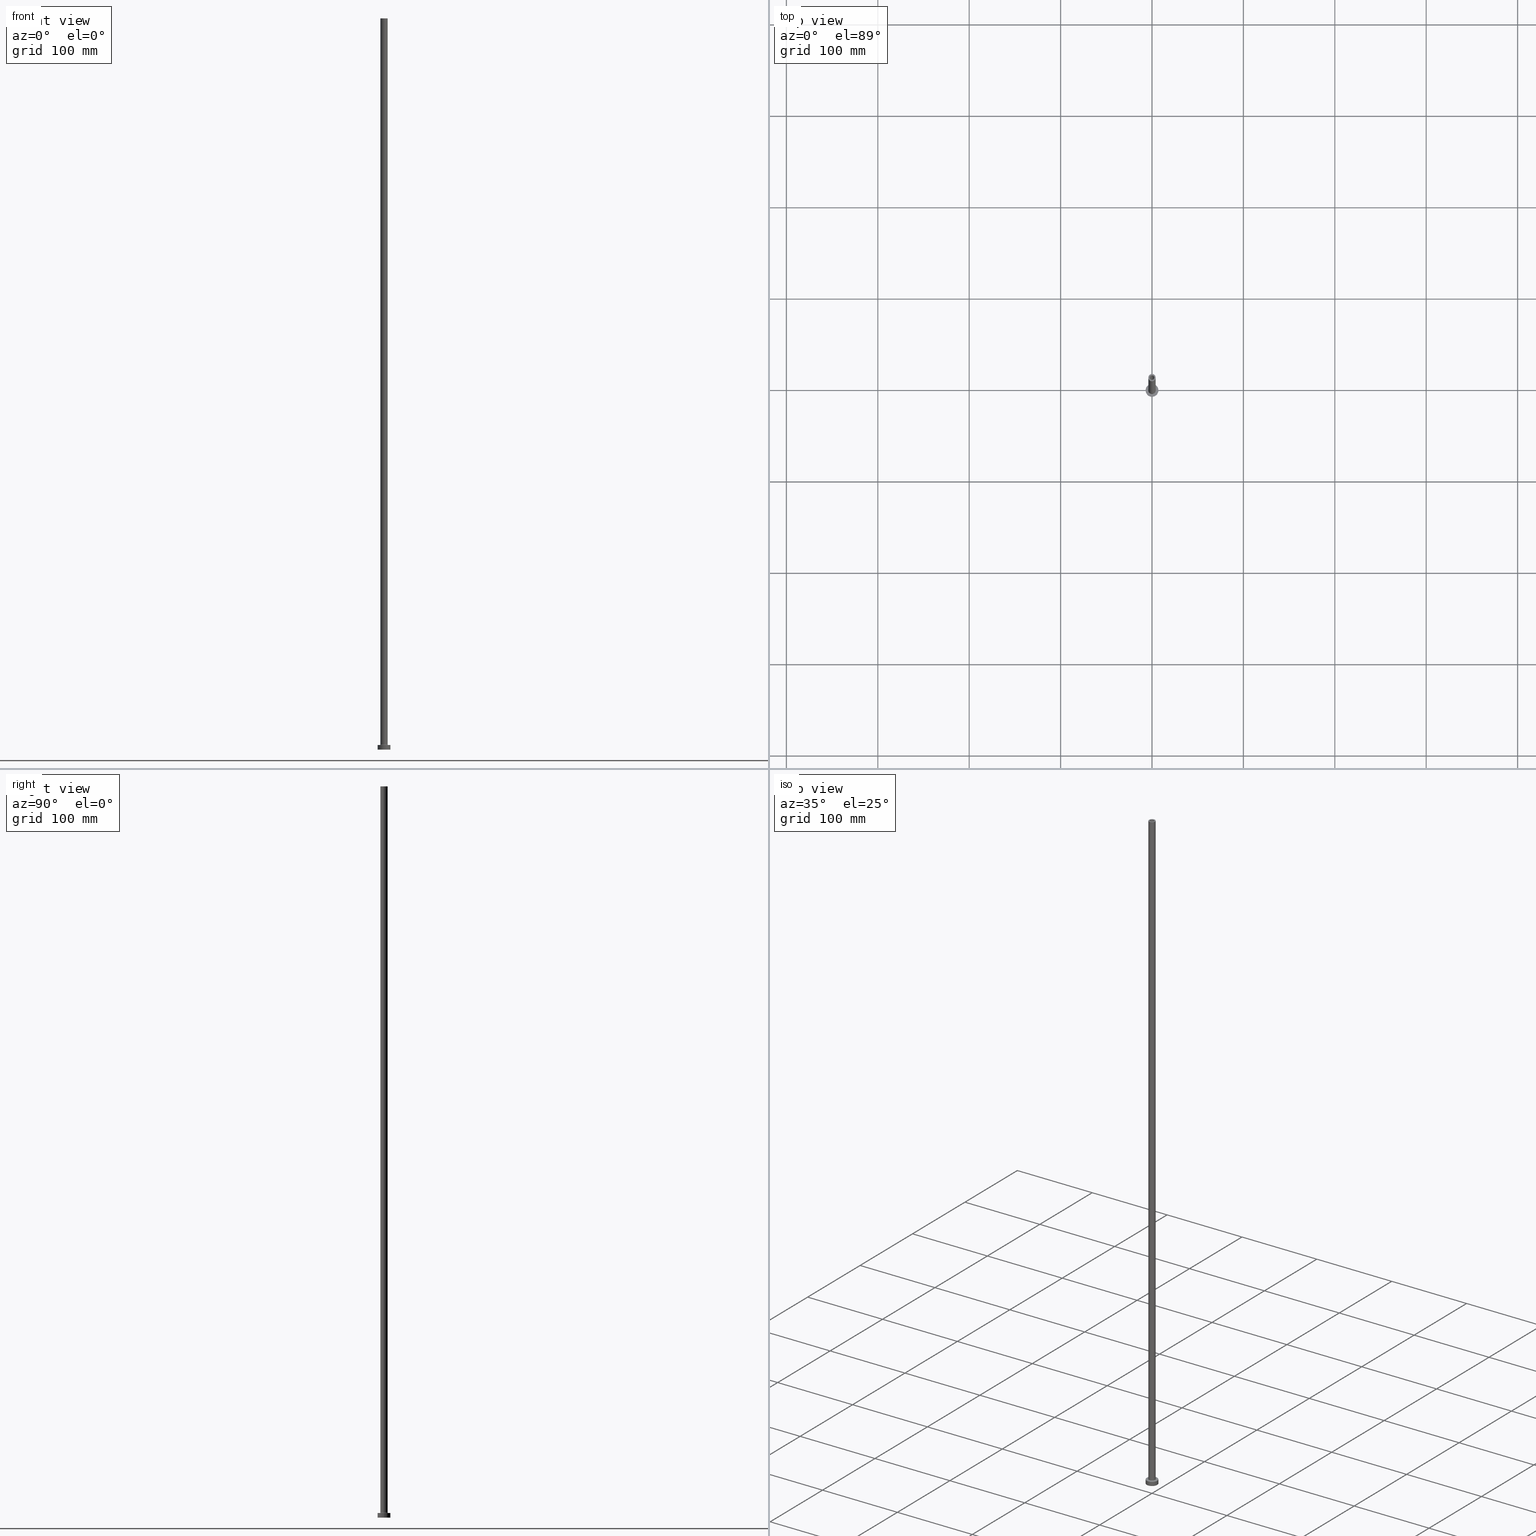
[diagram: canonical four-view strip — front | top / right | iso, engineering-drawing reading convention]
A machine part, canonical four-view strip (front | top / right | iso — engineering-drawing reading convention). The complete STEP part file that produces these views, byte-faithful:
ISO-10303-21;
HEADER;
FILE_DESCRIPTION (( 'STEP AP203' ),
    '1' );
FILE_NAME ('edc5.STEP',
    '2023-02-13T17:07:32',
    ( '' ),
    ( '' ),
    'SwSTEP 2.0',
    'SolidWorks 2019',
    '' );
FILE_SCHEMA (( 'CONFIG_CONTROL_DESIGN' ));
ENDSEC;

DATA;
#1 = EDGE_CURVE ( 'NONE', #314, #282, #418, .T. ) ;
#2 = ORIENTED_EDGE ( 'NONE', *, *, #391, .F. ) ;
#3 = DIRECTION ( 'NONE',  ( 0.000000000000000000, 0.000000000000000000, -1.000000000000000000 ) ) ;
#4 = ORIENTED_EDGE ( 'NONE', *, *, #53, .T. ) ;
#5 = CARTESIAN_POINT ( 'NONE',  ( 0.000000000000000000, 0.000000000000000000, 5.000000000000000000 ) ) ;
#6 = ORIENTED_EDGE ( 'NONE', *, *, #226, .F. ) ;
#7 = PLANE ( 'NONE',  #70 ) ;
#8 = CARTESIAN_POINT ( 'NONE',  ( 2.649999999999999911, 3.245314017740485962E-16, 762.4953318805775098 ) ) ;
#9 = ORIENTED_EDGE ( 'NONE', *, *, #249, .F. ) ;
#10 = CC_DESIGN_PERSON_AND_ORGANIZATION_ASSIGNMENT ( #262, #239, ( #187 ) ) ;
#11 = APPROVAL_ROLE ( '' ) ;
#12 = EDGE_LOOP ( 'NONE', ( #233, #182, #335, #103 ) ) ;
#13 = LINE ( 'NONE', #365, #410 ) ;
#14 = CIRCLE ( 'NONE', #258, 0.5000000000000004441 ) ;
#15 = LINE ( 'NONE', #222, #440 ) ;
#16 = VERTEX_POINT ( 'NONE', #231 ) ;
#17 = CIRCLE ( 'NONE', #133, 2.500000000000000000 ) ;
#18 = CIRCLE ( 'NONE', #460, 4.000000000000000000 ) ;
#19 = VECTOR ( 'NONE', #437, 1000.000000000000000 ) ;
#20 = EDGE_CURVE ( 'NONE', #243, #386, #14, .T. ) ;
#21 = DIRECTION ( 'NONE',  ( -0.000000000000000000, -0.000000000000000000, -1.000000000000000000 ) ) ;
#22 = FACE_OUTER_BOUND ( 'NONE', #164, .T. ) ;
#23 = ORIENTED_EDGE ( 'NONE', *, *, #208, .F. ) ;
#24 = DIRECTION ( 'NONE',  ( 1.000000000000000000, 0.000000000000000000, -0.000000000000000000 ) ) ;
#25 = PERSON ( 'NEUR�EN�', 'NEUR�EN�', 'NEUR�EN�', ('NEUR�EN�'), ('NEUR�EN�'), ('NEUR�EN�') ) ;
#26 = EDGE_LOOP ( 'NONE', ( #240, #390, #438, #290 ) ) ;
#27 = AXIS2_PLACEMENT_3D ( 'NONE', #197, #43, #347 ) ;
#28 = CARTESIAN_POINT ( 'NONE',  ( 0.000000000000000000, 0.000000000000000000, 755.0000000000000000 ) ) ;
#29 = DIRECTION ( 'NONE',  ( -0.000000000000000000, -0.000000000000000000, -1.000000000000000000 ) ) ;
#30 = CIRCLE ( 'NONE', #275, 2.649999999999999911 ) ;
#31 = CARTESIAN_POINT ( 'NONE',  ( 0.000000000000000000, 0.000000000000000000, 800.0000000000000000 ) ) ;
#32 = DIRECTION ( 'NONE',  ( 0.000000000000000000, 0.000000000000000000, 1.000000000000000000 ) ) ;
#33 = VERTEX_POINT ( 'NONE', #127 ) ;
#34 = CIRCLE ( 'NONE', #255, 2.500000000000000000 ) ;
#35 = CARTESIAN_POINT ( 'NONE',  ( 0.000000000000000000, 0.000000000000000000, 0.000000000000000000 ) ) ;
#36 = APPROVAL_DATE_TIME ( #281, #184 ) ;
#37 = DIRECTION ( 'NONE',  ( 1.000000000000000000, 0.000000000000000000, 0.000000000000000000 ) ) ;
#38 = DIRECTION ( 'NONE',  ( 1.000000000000000000, 0.000000000000000000, 0.000000000000000000 ) ) ;
#39 = EDGE_CURVE ( 'NONE', #386, #115, #68, .T. ) ;
#40 = CYLINDRICAL_SURFACE ( 'NONE', #71, 2.500000000000000000 ) ;
#41 = EDGE_LOOP ( 'NONE', ( #136, #132, #248, #49 ) ) ;
#42 = EDGE_LOOP ( 'NONE', ( #439, #169, #73, #446 ) ) ;
#43 = DIRECTION ( 'NONE',  ( 0.000000000000000000, 0.000000000000000000, -1.000000000000000000 ) ) ;
#44 = TOROIDAL_SURFACE ( 'NONE', #351, 4.500000000000000888, 0.5000000000000000000 ) ;
#45 = DIRECTION ( 'NONE',  ( 1.000000000000000000, 0.000000000000000000, -0.000000000000000000 ) ) ;
#46 =( GEOMETRIC_REPRESENTATION_CONTEXT ( 3 ) GLOBAL_UNCERTAINTY_ASSIGNED_CONTEXT ( ( #198 ) ) GLOBAL_UNIT_ASSIGNED_CONTEXT ( ( #159, #400, #321 ) ) REPRESENTATION_CONTEXT ( 'NONE', 'WORKASPACE' ) );
#47 = ORIENTED_EDGE ( 'NONE', *, *, #108, .F. ) ;
#48 = MECHANICAL_CONTEXT ( 'NONE', #362, 'mechanical' ) ;
#49 = ORIENTED_EDGE ( 'NONE', *, *, #150, .F. ) ;
#50 = DIRECTION ( 'NONE',  ( 1.000000000000000000, 0.000000000000000000, 0.000000000000000000 ) ) ;
#51 = VERTEX_POINT ( 'NONE', #304 ) ;
#52 = DIRECTION ( 'NONE',  ( 0.000000000000000000, 0.000000000000000000, 1.000000000000000000 ) ) ;
#53 = EDGE_CURVE ( 'NONE', #33, #110, #366, .T. ) ;
#54 = APPROVAL_ROLE ( '' ) ;
#55 = EDGE_CURVE ( 'NONE', #354, #85, #30, .T. ) ;
#56 = CARTESIAN_POINT ( 'NONE',  ( 0.000000000000000000, 0.000000000000000000, 800.0000000000000000 ) ) ;
#57 = LINE ( 'NONE', #190, #329 ) ;
#58 = COORDINATED_UNIVERSAL_TIME_OFFSET ( 1, 0, .AHEAD. ) ;
#59 = EDGE_LOOP ( 'NONE', ( #230, #82 ) ) ;
#60 = AXIS2_PLACEMENT_3D ( 'NONE', #123, #257, #453 ) ;
#61 = DIRECTION ( 'NONE',  ( -1.000000000000000000, 0.000000000000000000, 0.000000000000000000 ) ) ;
#62 = APPROVAL_PERSON_ORGANIZATION ( #256, #322, #54 ) ;
#63 = DIRECTION ( 'NONE',  ( 0.000000000000000000, 0.000000000000000000, 1.000000000000000000 ) ) ;
#64 = CARTESIAN_POINT ( 'NONE',  ( 0.000000000000000000, 0.000000000000000000, 755.0000000000000000 ) ) ;
#65 = DIRECTION ( 'NONE',  ( 0.000000000000000000, 0.000000000000000000, 1.000000000000000000 ) ) ;
#66 = ADVANCED_FACE ( 'NONE', ( #422 ), #378, .T. ) ;
#67 = CARTESIAN_POINT ( 'NONE',  ( -7.000000000000000000, 0.000000000000000000, 5.000000000000000000 ) ) ;
#68 = CIRCLE ( 'NONE', #426, 4.500000000000000888 ) ;
#69 = EDGE_LOOP ( 'NONE', ( #6, #47 ) ) ;
#70 = AXIS2_PLACEMENT_3D ( 'NONE', #173, #140, #111 ) ;
#71 = AXIS2_PLACEMENT_3D ( 'NONE', #425, #461, #361 ) ;
#72 = LOCAL_TIME ( 18, 7, 32.00000000000000000, #217 ) ;
#73 = ORIENTED_EDGE ( 'NONE', *, *, #155, .T. ) ;
#74 = PRODUCT_DEFINITION_SHAPE ( 'NONE', 'NONE',  #194 ) ;
#75 = LINE ( 'NONE', #381, #19 ) ;
#76 = SHAPE_DEFINITION_REPRESENTATION ( #74, #166 ) ;
#77 = ORIENTED_EDGE ( 'NONE', *, *, #39, .F. ) ;
#78 = DIRECTION ( 'NONE',  ( 0.000000000000000000, 0.000000000000000000, 1.000000000000000000 ) ) ;
#79 = ORIENTED_EDGE ( 'NONE', *, *, #53, .F. ) ;
#80 = CARTESIAN_POINT ( 'NONE',  ( -2.500000000000000000, 0.000000000000000000, 755.0000000000000000 ) ) ;
#81 = VECTOR ( 'NONE', #433, 1000.000000000000000 ) ;
#82 = ORIENTED_EDGE ( 'NONE', *, *, #268, .F. ) ;
#83 = ADVANCED_FACE ( 'NONE', ( #102 ), #192, .F. ) ;
#84 = DIRECTION ( 'NONE',  ( 0.000000000000000000, 0.000000000000000000, 1.000000000000000000 ) ) ;
#85 = VERTEX_POINT ( 'NONE', #193 ) ;
#86 = AXIS2_PLACEMENT_3D ( 'NONE', #415, #295, #61 ) ;
#87 = CIRCLE ( 'NONE', #253, 2.649999999999999911 ) ;
#88 = FACE_OUTER_BOUND ( 'NONE', #130, .T. ) ;
#89 = APPROVAL_PERSON_ORGANIZATION ( #337, #161, #303 ) ;
#90 = DATE_AND_TIME ( #407, #389 ) ;
#91 = FACE_BOUND ( 'NONE', #228, .T. ) ;
#92 = CC_DESIGN_PERSON_AND_ORGANIZATION_ASSIGNMENT ( #157, #305, ( #194 ) ) ;
#93 = FACE_OUTER_BOUND ( 'NONE', #207, .T. ) ;
#94 = AXIS2_PLACEMENT_3D ( 'NONE', #212, #63, #199 ) ;
#95 = CALENDAR_DATE ( 2023, 13, 2 ) ;
#96 = APPROVAL_DATE_TIME ( #265, #161 ) ;
#97 = DIRECTION ( 'NONE',  ( 1.000000000000000000, 0.000000000000000000, 0.000000000000000000 ) ) ;
#98 = CARTESIAN_POINT ( 'NONE',  ( 0.000000000000000000, 0.000000000000000000, 5.000000000000000000 ) ) ;
#99 = CC_DESIGN_DATE_AND_TIME_ASSIGNMENT ( #294, #412, ( #187 ) ) ;
#100 = VECTOR ( 'NONE', #310, 1000.000000000000000 ) ;
#101 = ADVANCED_FACE ( 'NONE', ( #156 ), #236, .F. ) ;
#102 = FACE_OUTER_BOUND ( 'NONE', #394, .T. ) ;
#103 = ORIENTED_EDGE ( 'NONE', *, *, #55, .T. ) ;
#104 = CARTESIAN_POINT ( 'NONE',  ( 4.000000000000000000, 4.898587196589412829E-16, 5.499999999999949374 ) ) ;
#105 = CIRCLE ( 'NONE', #241, 4.500000000000000888 ) ;
#106 = APPROVAL_PERSON_ORGANIZATION ( #107, #184, #11 ) ;
#107 = PERSON_AND_ORGANIZATION ( #25, #261 ) ;
#108 = EDGE_CURVE ( 'NONE', #16, #431, #332, .T. ) ;
#109 = DIRECTION ( 'NONE',  ( 1.000000000000000000, 0.000000000000000000, 0.000000000000000000 ) ) ;
#110 = VERTEX_POINT ( 'NONE', #67 ) ;
#111 = DIRECTION ( 'NONE',  ( 1.000000000000000000, 0.000000000000000000, -0.000000000000000000 ) ) ;
#112 = CC_DESIGN_DATE_AND_TIME_ASSIGNMENT ( #291, #447, ( #194 ) ) ;
#113 = CARTESIAN_POINT ( 'NONE',  ( 2.649999999999999911, 3.245314017740485962E-16, 755.0000000000000000 ) ) ;
#114 = DIRECTION ( 'NONE',  ( -1.000000000000000000, 0.000000000000000000, 0.000000000000000000 ) ) ;
#115 = VERTEX_POINT ( 'NONE', #409 ) ;
#116 = ADVANCED_FACE ( 'NONE', ( #93 ), #44, .F. ) ;
#117 = AXIS2_PLACEMENT_3D ( 'NONE', #379, #65, #195 ) ;
#118 = ORIENTED_EDGE ( 'NONE', *, *, #377, .T. ) ;
#119 = ORIENTED_EDGE ( 'NONE', *, *, #20, .F. ) ;
#120 = CARTESIAN_POINT ( 'NONE',  ( 0.000000000000000000, 0.000000000000000000, 0.000000000000000000 ) ) ;
#121 = DIRECTION ( 'NONE',  ( -0.000000000000000000, -0.000000000000000000, -1.000000000000000000 ) ) ;
#122 = AXIS2_PLACEMENT_3D ( 'NONE', #181, #21, #272 ) ;
#123 = CARTESIAN_POINT ( 'NONE',  ( 0.000000000000000000, 0.000000000000000000, 5.499999999999949374 ) ) ;
#124 = DIRECTION ( 'NONE',  ( 0.000000000000000000, 0.000000000000000000, 1.000000000000000000 ) ) ;
#125 = AXIS2_PLACEMENT_3D ( 'NONE', #364, #143, #146 ) ;
#126 = EDGE_CURVE ( 'NONE', #110, #431, #57, .T. ) ;
#127 = CARTESIAN_POINT ( 'NONE',  ( 7.000000000000000000, 8.572527594031473190E-16, 5.000000000000000000 ) ) ;
#128 = CARTESIAN_POINT ( 'NONE',  ( 0.000000000000000000, 0.000000000000000000, 0.000000000000000000 ) ) ;
#129 = PERSON_AND_ORGANIZATION ( #25, #261 ) ;
#130 = EDGE_LOOP ( 'NONE', ( #23, #397, #355, #456 ) ) ;
#131 = DIRECTION ( 'NONE',  ( 1.000000000000000000, 0.000000000000000000, 0.000000000000000000 ) ) ;
#132 = ORIENTED_EDGE ( 'NONE', *, *, #444, .T. ) ;
#133 = AXIS2_PLACEMENT_3D ( 'NONE', #172, #326, #323 ) ;
#134 = DIRECTION ( 'NONE',  ( -0.000000000000000000, -0.000000000000000000, -1.000000000000000000 ) ) ;
#135 = EDGE_CURVE ( 'NONE', #435, #227, #299, .T. ) ;
#136 = ORIENTED_EDGE ( 'NONE', *, *, #340, .T. ) ;
#137 = LOCAL_TIME ( 18, 7, 32.00000000000000000, #267 ) ;
#138 = EDGE_CURVE ( 'NONE', #441, #243, #15, .T. ) ;
#139 = VERTEX_POINT ( 'NONE', #113 ) ;
#140 = DIRECTION ( 'NONE',  ( 0.000000000000000000, 0.000000000000000000, 1.000000000000000000 ) ) ;
#141 = EDGE_LOOP ( 'NONE', ( #214, #315, #384, #288 ) ) ;
#142 = ORIENTED_EDGE ( 'NONE', *, *, #336, .T. ) ;
#143 = DIRECTION ( 'NONE',  ( -0.000000000000000000, -0.000000000000000000, -1.000000000000000000 ) ) ;
#144 = DIRECTION ( 'NONE',  ( 1.000000000000000000, 0.000000000000000000, -0.000000000000000000 ) ) ;
#145 = EDGE_LOOP ( 'NONE', ( #401, #363 ) ) ;
#146 = DIRECTION ( 'NONE',  ( -1.000000000000000000, 0.000000000000000000, 0.000000000000000000 ) ) ;
#147 = COORDINATED_UNIVERSAL_TIME_OFFSET ( 1, 0, .AHEAD. ) ;
#148 = DIRECTION ( 'NONE',  ( 0.000000000000000000, 0.000000000000000000, 1.000000000000000000 ) ) ;
#149 = AXIS2_PLACEMENT_3D ( 'NONE', #202, #244, #350 ) ;
#150 = EDGE_CURVE ( 'NONE', #176, #354, #408, .T. ) ;
#151 = SECURITY_CLASSIFICATION_LEVEL ( 'unclassified' ) ;
#152 = DIRECTION ( 'NONE',  ( 1.000000000000000000, 0.000000000000000000, 0.000000000000000000 ) ) ;
#153 = CARTESIAN_POINT ( 'NONE',  ( 0.000000000000000000, 0.000000000000000000, 755.0000000000000000 ) ) ;
#154 = PRODUCT_DEFINITION_FORMATION_WITH_SPECIFIED_SOURCE ( 'LIBOVOLN�', '', #206, .NOT_KNOWN. ) ;
#155 = EDGE_CURVE ( 'NONE', #435, #282, #432, .T. ) ;
#156 = FACE_OUTER_BOUND ( 'NONE', #12, .T. ) ;
#157 = PERSON_AND_ORGANIZATION ( #25, #261 ) ;
#158 = CC_DESIGN_PERSON_AND_ORGANIZATION_ASSIGNMENT ( #129, #427, ( #206 ) ) ;
#159 =( LENGTH_UNIT ( ) NAMED_UNIT ( * ) SI_UNIT ( .MILLI., .METRE. ) );
#160 = FACE_OUTER_BOUND ( 'NONE', #42, .T. ) ;
#161 = APPROVAL ( #343, 'NEUR�EN�' ) ;
#162 = CIRCLE ( 'NONE', #149, 7.000000000000000000 ) ;
#163 = ORIENTED_EDGE ( 'NONE', *, *, #20, .T. ) ;
#164 = EDGE_LOOP ( 'NONE', ( #142, #216 ) ) ;
#165 = CARTESIAN_POINT ( 'NONE',  ( -4.500000000000000888, 5.510910596163088569E-16, 4.999999999999975131 ) ) ;
#166 = ADVANCED_BREP_SHAPE_REPRESENTATION ( 'edc5', ( #398, #369 ), #46 ) ;
#167 = CYLINDRICAL_SURFACE ( 'NONE', #27, 2.500000000000000000 ) ;
#168 = AXIS2_PLACEMENT_3D ( 'NONE', #128, #124, #97 ) ;
#169 = ORIENTED_EDGE ( 'NONE', *, *, #268, .T. ) ;
#170 = AXIS2_PLACEMENT_3D ( 'NONE', #120, #52, #175 ) ;
#171 = APPLICATION_PROTOCOL_DEFINITION ( 'international standard', 'config_control_design', 1994, #277 ) ;
#172 = CARTESIAN_POINT ( 'NONE',  ( 0.000000000000000000, 0.000000000000000000, 800.0000000000000000 ) ) ;
#173 = CARTESIAN_POINT ( 'NONE',  ( 0.000000000000000000, 0.000000000000000000, 5.000000000000000000 ) ) ;
#174 = ORIENTED_EDGE ( 'NONE', *, *, #454, .F. ) ;
#175 = DIRECTION ( 'NONE',  ( 1.000000000000000000, 0.000000000000000000, 0.000000000000000000 ) ) ;
#176 = VERTEX_POINT ( 'NONE', #395 ) ;
#177 = PRODUCT_RELATED_PRODUCT_CATEGORY ( 'detail', '', ( #206 ) ) ;
#178 = AXIS2_PLACEMENT_3D ( 'NONE', #414, #301, #353 ) ;
#179 = EDGE_LOOP ( 'NONE', ( #200, #4 ) ) ;
#180 = CARTESIAN_POINT ( 'NONE',  ( 2.500000000000000000, 3.061616997868383141E-16, 800.0000000000000000 ) ) ;
#181 = CARTESIAN_POINT ( 'NONE',  ( 0.000000000000000000, 0.000000000000000000, 5.000000000000000000 ) ) ;
#182 = ORIENTED_EDGE ( 'NONE', *, *, #302, .T. ) ;
#183 = FACE_OUTER_BOUND ( 'NONE', #179, .T. ) ;
#184 = APPROVAL ( #325, 'NEUR�EN�' ) ;
#185 = ORIENTED_EDGE ( 'NONE', *, *, #55, .F. ) ;
#186 = CIRCLE ( 'NONE', #117, 2.649999999999999911 ) ;
#187 = SECURITY_CLASSIFICATION ( '', '', #151 ) ;
#188 = CARTESIAN_POINT ( 'NONE',  ( 0.000000000000000000, 0.000000000000000000, 5.499999999999949374 ) ) ;
#189 = CALENDAR_DATE ( 2023, 13, 2 ) ;
#190 = CARTESIAN_POINT ( 'NONE',  ( -7.000000000000000000, 0.000000000000000000, 5.000000000000000000 ) ) ;
#191 = CARTESIAN_POINT ( 'NONE',  ( 0.000000000000000000, 0.000000000000000000, 5.499999999999949374 ) ) ;
#192 = TOROIDAL_SURFACE ( 'NONE', #60, 4.500000000000000888, 0.5000000000000000000 ) ;
#193 = CARTESIAN_POINT ( 'NONE',  ( 2.649999999999999911, 3.245314017740485962E-16, 0.000000000000000000 ) ) ;
#194 = PRODUCT_DEFINITION ( 'NEZN�M�', '', #154, #309 ) ;
#195 = DIRECTION ( 'NONE',  ( 1.000000000000000000, 0.000000000000000000, 0.000000000000000000 ) ) ;
#196 = ORIENTED_EDGE ( 'NONE', *, *, #238, .F. ) ;
#197 = CARTESIAN_POINT ( 'NONE',  ( 0.000000000000000000, 0.000000000000000000, 800.0000000000000000 ) ) ;
#198 = UNCERTAINTY_MEASURE_WITH_UNIT (LENGTH_MEASURE( 1.000000000000000082E-05 ), #159, 'distance_accuracy_value', 'NONE');
#199 = DIRECTION ( 'NONE',  ( 1.000000000000000000, 0.000000000000000000, 0.000000000000000000 ) ) ;
#200 = ORIENTED_EDGE ( 'NONE', *, *, #391, .T. ) ;
#201 = CARTESIAN_POINT ( 'NONE',  ( -2.500000000000000000, 0.000000000000000000, 800.0000000000000000 ) ) ;
#202 = CARTESIAN_POINT ( 'NONE',  ( 0.000000000000000000, 0.000000000000000000, 5.000000000000000000 ) ) ;
#203 = ORIENTED_EDGE ( 'NONE', *, *, #108, .T. ) ;
#204 = EDGE_CURVE ( 'NONE', #115, #386, #105, .T. ) ;
#205 = AXIS2_PLACEMENT_3D ( 'NONE', #234, #423, #144 ) ;
#206 = PRODUCT ( 'edc5', 'edc5', '', ( #48 ) ) ;
#207 = EDGE_LOOP ( 'NONE', ( #196, #163, #218, #300 ) ) ;
#208 = EDGE_CURVE ( 'NONE', #51, #358, #349, .T. ) ;
#209 = DIRECTION ( 'NONE',  ( 0.000000000000000000, 0.000000000000000000, -1.000000000000000000 ) ) ;
#210 = CARTESIAN_POINT ( 'NONE',  ( 0.000000000000000000, 0.000000000000000000, 800.0000000000000000 ) ) ;
#211 = CARTESIAN_POINT ( 'NONE',  ( 0.000000000000000000, 0.000000000000000000, 755.0000000000000000 ) ) ;
#212 = CARTESIAN_POINT ( 'NONE',  ( 0.000000000000000000, 0.000000000000000000, 800.0000000000000000 ) ) ;
#213 = APPLICATION_PROTOCOL_DEFINITION ( 'international standard', 'config_control_design', 1994, #362 ) ;
#214 = ORIENTED_EDGE ( 'NONE', *, *, #135, .T. ) ;
#215 = CIRCLE ( 'NONE', #94, 4.000000000000000000 ) ;
#216 = ORIENTED_EDGE ( 'NONE', *, *, #405, .T. ) ;
#217 = COORDINATED_UNIVERSAL_TIME_OFFSET ( 1, 0, .AHEAD. ) ;
#218 = ORIENTED_EDGE ( 'NONE', *, *, #204, .F. ) ;
#219 = ORIENTED_EDGE ( 'NONE', *, *, #126, .T. ) ;
#220 = AXIS2_PLACEMENT_3D ( 'NONE', #263, #383, #38 ) ;
#221 = EDGE_CURVE ( 'NONE', #227, #314, #13, .T. ) ;
#222 = CARTESIAN_POINT ( 'NONE',  ( -4.000000000000000000, 0.000000000000000000, 800.0000000000000000 ) ) ;
#223 = CIRCLE ( 'NONE', #170, 7.000000000000000000 ) ;
#224 = APPROVAL_STATUS ( 'not_yet_approved' ) ;
#225 = CYLINDRICAL_SURFACE ( 'NONE', #125, 4.000000000000000000 ) ;
#226 = EDGE_CURVE ( 'NONE', #431, #16, #223, .T. ) ;
#227 = VERTEX_POINT ( 'NONE', #180 ) ;
#228 = EDGE_LOOP ( 'NONE', ( #185, #251 ) ) ;
#229 = DIRECTION ( 'NONE',  ( 0.000000000000000000, 0.000000000000000000, 1.000000000000000000 ) ) ;
#230 = ORIENTED_EDGE ( 'NONE', *, *, #135, .F. ) ;
#231 = CARTESIAN_POINT ( 'NONE',  ( 7.000000000000000000, 8.572527594031473190E-16, 0.000000000000000000 ) ) ;
#232 = ADVANCED_FACE ( 'NONE', ( #88 ), #225, .T. ) ;
#233 = ORIENTED_EDGE ( 'NONE', *, *, #444, .F. ) ;
#234 = CARTESIAN_POINT ( 'NONE',  ( 0.000000000000000000, 0.000000000000000000, 0.000000000000000000 ) ) ;
#235 = DIRECTION ( 'NONE',  ( 1.000000000000000000, 0.000000000000000000, 0.000000000000000000 ) ) ;
#236 = CYLINDRICAL_SURFACE ( 'NONE', #443, 2.649999999999999911 ) ;
#237 = CARTESIAN_POINT ( 'NONE',  ( -2.649999999999999911, 0.000000000000000000, 0.000000000000000000 ) ) ;
#238 = EDGE_CURVE ( 'NONE', #243, #358, #283, .T. ) ;
#239 = PERSON_AND_ORGANIZATION_ROLE ( 'classification_officer' ) ;
#240 = ORIENTED_EDGE ( 'NONE', *, *, #405, .F. ) ;
#241 = AXIS2_PLACEMENT_3D ( 'NONE', #98, #270, #424 ) ;
#242 = CALENDAR_DATE ( 2023, 13, 2 ) ;
#243 = VERTEX_POINT ( 'NONE', #328 ) ;
#244 = DIRECTION ( 'NONE',  ( 0.000000000000000000, 0.000000000000000000, 1.000000000000000000 ) ) ;
#245 = ADVANCED_FACE ( 'NONE', ( #370, #183 ), #7, .T. ) ;
#246 = DIRECTION ( 'NONE',  ( 0.000000000000000000, 0.000000000000000000, 1.000000000000000000 ) ) ;
#247 = FACE_OUTER_BOUND ( 'NONE', #145, .T. ) ;
#248 = ORIENTED_EDGE ( 'NONE', *, *, #316, .T. ) ;
#249 = EDGE_CURVE ( 'NONE', #358, #243, #18, .T. ) ;
#250 = CARTESIAN_POINT ( 'NONE',  ( -4.000000000000000000, 0.000000000000000000, 800.0000000000000000 ) ) ;
#251 = ORIENTED_EDGE ( 'NONE', *, *, #316, .F. ) ;
#252 = DIRECTION ( 'NONE',  ( 0.000000000000000000, 0.000000000000000000, -1.000000000000000000 ) ) ;
#253 = AXIS2_PLACEMENT_3D ( 'NONE', #312, #134, #235 ) ;
#254 = CARTESIAN_POINT ( 'NONE',  ( 0.000000000000000000, 0.000000000000000000, 5.499999999999949374 ) ) ;
#255 = AXIS2_PLACEMENT_3D ( 'NONE', #28, #229, #293 ) ;
#256 = PERSON_AND_ORGANIZATION ( #25, #261 ) ;
#257 = DIRECTION ( 'NONE',  ( 0.000000000000000000, 0.000000000000000000, 1.000000000000000000 ) ) ;
#258 = AXIS2_PLACEMENT_3D ( 'NONE', #452, #348, #374 ) ;
#259 = DIRECTION ( 'NONE',  ( 0.000000000000000000, 0.000000000000000000, 1.000000000000000000 ) ) ;
#260 = LOCAL_TIME ( 18, 7, 32.00000000000000000, #58 ) ;
#261 = ORGANIZATION ( 'NEUR�EN�', 'NEUR�EN�', '' ) ;
#262 = PERSON_AND_ORGANIZATION ( #25, #261 ) ;
#263 = CARTESIAN_POINT ( 'NONE',  ( 0.000000000000000000, 0.000000000000000000, 5.000000000000000000 ) ) ;
#264 = ADVANCED_FACE ( 'NONE', ( #91, #385 ), #430, .F. ) ;
#265 = DATE_AND_TIME ( #189, #260 ) ;
#266 = EDGE_LOOP ( 'NONE', ( #276, #372 ) ) ;
#267 = COORDINATED_UNIVERSAL_TIME_OFFSET ( 1, 0, .AHEAD. ) ;
#268 = EDGE_CURVE ( 'NONE', #227, #435, #17, .T. ) ;
#269 = DIRECTION ( 'NONE',  ( -1.000000000000000000, 0.000000000000000000, 0.000000000000000000 ) ) ;
#270 = DIRECTION ( 'NONE',  ( -0.000000000000000000, -0.000000000000000000, -1.000000000000000000 ) ) ;
#271 = CC_DESIGN_APPROVAL ( #184, ( #194 ) ) ;
#272 = DIRECTION ( 'NONE',  ( -1.000000000000000000, 0.000000000000000000, 0.000000000000000000 ) ) ;
#273 = ADVANCED_FACE ( 'NONE', ( #434, #247 ), #285, .F. ) ;
#274 = CYLINDRICAL_SURFACE ( 'NONE', #122, 7.000000000000000000 ) ;
#275 = AXIS2_PLACEMENT_3D ( 'NONE', #35, #313, #152 ) ;
#276 = ORIENTED_EDGE ( 'NONE', *, *, #284, .T. ) ;
#277 = APPLICATION_CONTEXT ( 'configuration controlled 3d designs of mechanical parts and assemblies' ) ;
#278 = CC_DESIGN_PERSON_AND_ORGANIZATION_ASSIGNMENT ( #375, #404, ( #154 ) ) ;
#279 = CYLINDRICAL_SURFACE ( 'NONE', #411, 7.000000000000000000 ) ;
#280 = EDGE_LOOP ( 'NONE', ( #318, #327 ) ) ;
#281 = DATE_AND_TIME ( #242, #72 ) ;
#282 = VERTEX_POINT ( 'NONE', #80 ) ;
#283 = CIRCLE ( 'NONE', #319, 4.000000000000000000 ) ;
#284 = EDGE_CURVE ( 'NONE', #282, #314, #34, .T. ) ;
#285 = PLANE ( 'NONE',  #402 ) ;
#286 = DIRECTION ( 'NONE',  ( 0.000000000000000000, 0.000000000000000000, 1.000000000000000000 ) ) ;
#287 = ADVANCED_FACE ( 'NONE', ( #448, #22 ), #451, .T. ) ;
#288 = ORIENTED_EDGE ( 'NONE', *, *, #155, .F. ) ;
#289 = CIRCLE ( 'NONE', #360, 0.5000000000000004441 ) ;
#290 = ORIENTED_EDGE ( 'NONE', *, *, #138, .F. ) ;
#291 = DATE_AND_TIME ( #333, #137 ) ;
#292 = FACE_OUTER_BOUND ( 'NONE', #141, .T. ) ;
#293 = DIRECTION ( 'NONE',  ( 1.000000000000000000, 0.000000000000000000, 0.000000000000000000 ) ) ;
#294 = DATE_AND_TIME ( #95, #320 ) ;
#295 = DIRECTION ( 'NONE',  ( -0.000000000000000000, -0.000000000000000000, -1.000000000000000000 ) ) ;
#296 = CLOSED_SHELL ( 'NONE', ( #429, #298, #116, #66, #436, #346, #245, #264, #232, #287, #83, #101, #273, #419 ) ) ;
#297 = APPROVAL_DATE_TIME ( #90, #322 ) ;
#298 = ADVANCED_FACE ( 'NONE', ( #445 ), #341, .F. ) ;
#299 = CIRCLE ( 'NONE', #428, 2.500000000000000000 ) ;
#300 = ORIENTED_EDGE ( 'NONE', *, *, #377, .F. ) ;
#301 = DIRECTION ( 'NONE',  ( 0.000000000000000000, 0.000000000000000000, -1.000000000000000000 ) ) ;
#302 = EDGE_CURVE ( 'NONE', #139, #176, #186, .T. ) ;
#303 = APPROVAL_ROLE ( '' ) ;
#304 = CARTESIAN_POINT ( 'NONE',  ( 4.000000000000000000, 4.898587196589412829E-16, 800.0000000000000000 ) ) ;
#305 = PERSON_AND_ORGANIZATION_ROLE ( 'creator' ) ;
#306 = ORIENTED_EDGE ( 'NONE', *, *, #226, .T. ) ;
#307 = CARTESIAN_POINT ( 'NONE',  ( 0.000000000000000000, 0.000000000000000000, 5.000000000000000000 ) ) ;
#308 = CARTESIAN_POINT ( 'NONE',  ( 0.000000000000000000, 0.000000000000000000, 0.000000000000000000 ) ) ;
#309 = DESIGN_CONTEXT ( 'detailed design', #277, 'design' ) ;
#310 = DIRECTION ( 'NONE',  ( 0.000000000000000000, 0.000000000000000000, -1.000000000000000000 ) ) ;
#311 = FACE_OUTER_BOUND ( 'NONE', #324, .T. ) ;
#312 = CARTESIAN_POINT ( 'NONE',  ( 0.000000000000000000, 0.000000000000000000, 0.000000000000000000 ) ) ;
#313 = DIRECTION ( 'NONE',  ( -0.000000000000000000, -0.000000000000000000, -1.000000000000000000 ) ) ;
#314 = VERTEX_POINT ( 'NONE', #345 ) ;
#315 = ORIENTED_EDGE ( 'NONE', *, *, #221, .T. ) ;
#316 = EDGE_CURVE ( 'NONE', #85, #354, #87, .T. ) ;
#317 = CARTESIAN_POINT ( 'NONE',  ( -7.000000000000000000, 0.000000000000000000, 0.000000000000000000 ) ) ;
#318 = ORIENTED_EDGE ( 'NONE', *, *, #204, .T. ) ;
#319 = AXIS2_PLACEMENT_3D ( 'NONE', #254, #286, #50 ) ;
#320 = LOCAL_TIME ( 18, 7, 32.00000000000000000, #421 ) ;
#321 =( NAMED_UNIT ( * ) SI_UNIT ( $, .STERADIAN. ) SOLID_ANGLE_UNIT ( ) );
#322 = APPROVAL ( #224, 'NEUR�EN�' ) ;
#323 = DIRECTION ( 'NONE',  ( 1.000000000000000000, 0.000000000000000000, 0.000000000000000000 ) ) ;
#324 = EDGE_LOOP ( 'NONE', ( #174, #2, #219, #306 ) ) ;
#325 = APPROVAL_STATUS ( 'not_yet_approved' ) ;
#326 = DIRECTION ( 'NONE',  ( 0.000000000000000000, 0.000000000000000000, 1.000000000000000000 ) ) ;
#327 = ORIENTED_EDGE ( 'NONE', *, *, #39, .T. ) ;
#328 = CARTESIAN_POINT ( 'NONE',  ( -4.000000000000000000, 0.000000000000000000, 5.499999999999949374 ) ) ;
#329 = VECTOR ( 'NONE', #338, 1000.000000000000000 ) ;
#330 = CC_DESIGN_SECURITY_CLASSIFICATION ( #187, ( #154 ) ) ;
#331 = DIRECTION ( 'NONE',  ( 1.000000000000000000, 0.000000000000000000, 0.000000000000000000 ) ) ;
#332 = CIRCLE ( 'NONE', #168, 7.000000000000000000 ) ;
#333 = CALENDAR_DATE ( 2023, 13, 2 ) ;
#334 = CC_DESIGN_APPROVAL ( #322, ( #154 ) ) ;
#335 = ORIENTED_EDGE ( 'NONE', *, *, #150, .T. ) ;
#336 = EDGE_CURVE ( 'NONE', #441, #51, #342, .T. ) ;
#337 = PERSON_AND_ORGANIZATION ( #25, #261 ) ;
#338 = DIRECTION ( 'NONE',  ( -0.000000000000000000, -0.000000000000000000, -1.000000000000000000 ) ) ;
#339 = DIRECTION ( 'NONE',  ( 1.000000000000000000, 0.000000000000000000, 0.000000000000000000 ) ) ;
#340 = EDGE_CURVE ( 'NONE', #176, #139, #406, .T. ) ;
#341 = CYLINDRICAL_SURFACE ( 'NONE', #178, 2.649999999999999911 ) ;
#342 = CIRCLE ( 'NONE', #373, 4.000000000000000000 ) ;
#343 = APPROVAL_STATUS ( 'not_yet_approved' ) ;
#344 = DIRECTION ( 'NONE',  ( 1.000000000000000000, 0.000000000000000000, 0.000000000000000000 ) ) ;
#345 = CARTESIAN_POINT ( 'NONE',  ( 2.500000000000000000, 3.061616997868383141E-16, 755.0000000000000000 ) ) ;
#346 = ADVANCED_FACE ( 'NONE', ( #311 ), #274, .T. ) ;
#347 = DIRECTION ( 'NONE',  ( -1.000000000000000000, 0.000000000000000000, 0.000000000000000000 ) ) ;
#348 = DIRECTION ( 'NONE',  ( 1.224646799147353207E-16, 1.000000000000000000, -0.000000000000000000 ) ) ;
#349 = LINE ( 'NONE', #359, #368 ) ;
#350 = DIRECTION ( 'NONE',  ( 1.000000000000000000, 0.000000000000000000, 0.000000000000000000 ) ) ;
#351 = AXIS2_PLACEMENT_3D ( 'NONE', #188, #259, #413 ) ;
#352 = ORIENTED_EDGE ( 'NONE', *, *, #126, .F. ) ;
#353 = DIRECTION ( 'NONE',  ( -1.000000000000000000, 0.000000000000000000, 0.000000000000000000 ) ) ;
#354 = VERTEX_POINT ( 'NONE', #237 ) ;
#355 = ORIENTED_EDGE ( 'NONE', *, *, #138, .T. ) ;
#356 = CARTESIAN_POINT ( 'NONE',  ( -2.500000000000000000, 0.000000000000000000, 800.0000000000000000 ) ) ;
#357 = DIRECTION ( 'NONE',  ( 0.000000000000000000, 0.000000000000000000, 1.000000000000000000 ) ) ;
#358 = VERTEX_POINT ( 'NONE', #104 ) ;
#359 = CARTESIAN_POINT ( 'NONE',  ( 4.000000000000000000, 4.898587196589412829E-16, 800.0000000000000000 ) ) ;
#360 = AXIS2_PLACEMENT_3D ( 'NONE', #392, #382, #209 ) ;
#361 = DIRECTION ( 'NONE',  ( -1.000000000000000000, 0.000000000000000000, 0.000000000000000000 ) ) ;
#362 = APPLICATION_CONTEXT ( 'configuration controlled 3d designs of mechanical parts and assemblies' ) ;
#363 = ORIENTED_EDGE ( 'NONE', *, *, #302, .F. ) ;
#364 = CARTESIAN_POINT ( 'NONE',  ( 0.000000000000000000, 0.000000000000000000, 800.0000000000000000 ) ) ;
#365 = CARTESIAN_POINT ( 'NONE',  ( 2.500000000000000000, 3.061616997868383141E-16, 800.0000000000000000 ) ) ;
#366 = CIRCLE ( 'NONE', #220, 7.000000000000000000 ) ;
#367 = DIRECTION ( 'NONE',  ( -0.000000000000000000, -0.000000000000000000, -1.000000000000000000 ) ) ;
#368 = VECTOR ( 'NONE', #367, 1000.000000000000000 ) ;
#369 = AXIS2_PLACEMENT_3D ( 'NONE', #308, #417, #109 ) ;
#370 = FACE_BOUND ( 'NONE', #280, .T. ) ;
#371 = CC_DESIGN_PERSON_AND_ORGANIZATION_ASSIGNMENT ( #450, #457, ( #154 ) ) ;
#372 = ORIENTED_EDGE ( 'NONE', *, *, #1, .T. ) ;
#373 = AXIS2_PLACEMENT_3D ( 'NONE', #210, #246, #396 ) ;
#374 = DIRECTION ( 'NONE',  ( -1.000000000000000000, 1.224646799147351482E-16, 0.000000000000000000 ) ) ;
#375 = PERSON_AND_ORGANIZATION ( #25, #261 ) ;
#376 = EDGE_LOOP ( 'NONE', ( #79, #442, #203, #352 ) ) ;
#377 = EDGE_CURVE ( 'NONE', #358, #115, #289, .T. ) ;
#378 = CYLINDRICAL_SURFACE ( 'NONE', #86, 4.000000000000000000 ) ;
#379 = CARTESIAN_POINT ( 'NONE',  ( 0.000000000000000000, 0.000000000000000000, 755.0000000000000000 ) ) ;
#380 = VECTOR ( 'NONE', #3, 1000.000000000000000 ) ;
#381 = CARTESIAN_POINT ( 'NONE',  ( 7.000000000000000000, 8.572527594031473190E-16, 5.000000000000000000 ) ) ;
#382 = DIRECTION ( 'NONE',  ( 0.000000000000000000, -1.000000000000000000, 0.000000000000000000 ) ) ;
#383 = DIRECTION ( 'NONE',  ( 0.000000000000000000, 0.000000000000000000, 1.000000000000000000 ) ) ;
#384 = ORIENTED_EDGE ( 'NONE', *, *, #284, .F. ) ;
#385 = FACE_OUTER_BOUND ( 'NONE', #69, .T. ) ;
#386 = VERTEX_POINT ( 'NONE', #165 ) ;
#387 = CARTESIAN_POINT ( 'NONE',  ( -2.649999999999999911, 0.000000000000000000, 762.4953318805775098 ) ) ;
#388 = AXIS2_PLACEMENT_3D ( 'NONE', #64, #78, #37 ) ;
#389 = LOCAL_TIME ( 18, 7, 32.00000000000000000, #147 ) ;
#390 = ORIENTED_EDGE ( 'NONE', *, *, #208, .T. ) ;
#391 = EDGE_CURVE ( 'NONE', #110, #33, #162, .T. ) ;
#392 = CARTESIAN_POINT ( 'NONE',  ( 4.500000000000000888, 0.000000000000000000, 5.499999999999949374 ) ) ;
#393 = LINE ( 'NONE', #8, #81 ) ;
#394 = EDGE_LOOP ( 'NONE', ( #119, #9, #118, #77 ) ) ;
#395 = CARTESIAN_POINT ( 'NONE',  ( -2.649999999999999911, 0.000000000000000000, 755.0000000000000000 ) ) ;
#396 = DIRECTION ( 'NONE',  ( 1.000000000000000000, 0.000000000000000000, 0.000000000000000000 ) ) ;
#397 = ORIENTED_EDGE ( 'NONE', *, *, #336, .F. ) ;
#398 = MANIFOLD_SOLID_BREP ( 'Odebrat vysunut�m4', #296 ) ;
#399 = AXIS2_PLACEMENT_3D ( 'NONE', #153, #416, #131 ) ;
#400 =( NAMED_UNIT ( * ) PLANE_ANGLE_UNIT ( ) SI_UNIT ( $, .RADIAN. ) );
#401 = ORIENTED_EDGE ( 'NONE', *, *, #340, .F. ) ;
#402 = AXIS2_PLACEMENT_3D ( 'NONE', #211, #357, #45 ) ;
#403 = CC_DESIGN_APPROVAL ( #161, ( #187 ) ) ;
#404 = PERSON_AND_ORGANIZATION_ROLE ( 'design_supplier' ) ;
#405 = EDGE_CURVE ( 'NONE', #51, #441, #215, .T. ) ;
#406 = CIRCLE ( 'NONE', #388, 2.649999999999999911 ) ;
#407 = CALENDAR_DATE ( 2023, 13, 2 ) ;
#408 = LINE ( 'NONE', #387, #380 ) ;
#409 = CARTESIAN_POINT ( 'NONE',  ( 4.500000000000000888, 0.000000000000000000, 4.999999999999975131 ) ) ;
#410 = VECTOR ( 'NONE', #252, 1000.000000000000000 ) ;
#411 = AXIS2_PLACEMENT_3D ( 'NONE', #5, #455, #114 ) ;
#412 = DATE_TIME_ROLE ( 'classification_date' ) ;
#413 = DIRECTION ( 'NONE',  ( 1.000000000000000000, 0.000000000000000000, 0.000000000000000000 ) ) ;
#414 = CARTESIAN_POINT ( 'NONE',  ( 0.000000000000000000, 0.000000000000000000, 762.4953318805775098 ) ) ;
#415 = CARTESIAN_POINT ( 'NONE',  ( 0.000000000000000000, 0.000000000000000000, 800.0000000000000000 ) ) ;
#416 = DIRECTION ( 'NONE',  ( 0.000000000000000000, 0.000000000000000000, 1.000000000000000000 ) ) ;
#417 = DIRECTION ( 'NONE',  ( 0.000000000000000000, 0.000000000000000000, 1.000000000000000000 ) ) ;
#418 = CIRCLE ( 'NONE', #399, 2.500000000000000000 ) ;
#419 = ADVANCED_FACE ( 'NONE', ( #160 ), #40, .F. ) ;
#420 = AXIS2_PLACEMENT_3D ( 'NONE', #56, #148, #24 ) ;
#421 = COORDINATED_UNIVERSAL_TIME_OFFSET ( 1, 0, .AHEAD. ) ;
#422 = FACE_OUTER_BOUND ( 'NONE', #26, .T. ) ;
#423 = DIRECTION ( 'NONE',  ( 0.000000000000000000, 0.000000000000000000, 1.000000000000000000 ) ) ;
#424 = DIRECTION ( 'NONE',  ( 1.000000000000000000, 0.000000000000000000, 0.000000000000000000 ) ) ;
#425 = CARTESIAN_POINT ( 'NONE',  ( 0.000000000000000000, 0.000000000000000000, 800.0000000000000000 ) ) ;
#426 = AXIS2_PLACEMENT_3D ( 'NONE', #307, #29, #344 ) ;
#427 = PERSON_AND_ORGANIZATION_ROLE ( 'design_owner' ) ;
#428 = AXIS2_PLACEMENT_3D ( 'NONE', #31, #84, #331 ) ;
#429 = ADVANCED_FACE ( 'NONE', ( #292 ), #167, .F. ) ;
#430 = PLANE ( 'NONE',  #205 ) ;
#431 = VERTEX_POINT ( 'NONE', #317 ) ;
#432 = LINE ( 'NONE', #201, #100 ) ;
#433 = DIRECTION ( 'NONE',  ( 0.000000000000000000, 0.000000000000000000, -1.000000000000000000 ) ) ;
#434 = FACE_BOUND ( 'NONE', #266, .T. ) ;
#435 = VERTEX_POINT ( 'NONE', #356 ) ;
#436 = ADVANCED_FACE ( 'NONE', ( #459 ), #279, .T. ) ;
#437 = DIRECTION ( 'NONE',  ( -0.000000000000000000, -0.000000000000000000, -1.000000000000000000 ) ) ;
#438 = ORIENTED_EDGE ( 'NONE', *, *, #249, .T. ) ;
#439 = ORIENTED_EDGE ( 'NONE', *, *, #221, .F. ) ;
#440 = VECTOR ( 'NONE', #121, 1000.000000000000000 ) ;
#441 = VERTEX_POINT ( 'NONE', #250 ) ;
#442 = ORIENTED_EDGE ( 'NONE', *, *, #454, .T. ) ;
#443 = AXIS2_PLACEMENT_3D ( 'NONE', #458, #449, #269 ) ;
#444 = EDGE_CURVE ( 'NONE', #139, #85, #393, .T. ) ;
#445 = FACE_OUTER_BOUND ( 'NONE', #41, .T. ) ;
#446 = ORIENTED_EDGE ( 'NONE', *, *, #1, .F. ) ;
#447 = DATE_TIME_ROLE ( 'creation_date' ) ;
#448 = FACE_BOUND ( 'NONE', #59, .T. ) ;
#449 = DIRECTION ( 'NONE',  ( 0.000000000000000000, 0.000000000000000000, -1.000000000000000000 ) ) ;
#450 = PERSON_AND_ORGANIZATION ( #25, #261 ) ;
#451 = PLANE ( 'NONE',  #420 ) ;
#452 = CARTESIAN_POINT ( 'NONE',  ( -4.500000000000000888, 5.510910596163089556E-16, 5.499999999999949374 ) ) ;
#453 = DIRECTION ( 'NONE',  ( 1.000000000000000000, 0.000000000000000000, 0.000000000000000000 ) ) ;
#454 = EDGE_CURVE ( 'NONE', #33, #16, #75, .T. ) ;
#455 = DIRECTION ( 'NONE',  ( -0.000000000000000000, -0.000000000000000000, -1.000000000000000000 ) ) ;
#456 = ORIENTED_EDGE ( 'NONE', *, *, #238, .T. ) ;
#457 = PERSON_AND_ORGANIZATION_ROLE ( 'creator' ) ;
#458 = CARTESIAN_POINT ( 'NONE',  ( 0.000000000000000000, 0.000000000000000000, 762.4953318805775098 ) ) ;
#459 = FACE_OUTER_BOUND ( 'NONE', #376, .T. ) ;
#460 = AXIS2_PLACEMENT_3D ( 'NONE', #191, #32, #339 ) ;
#461 = DIRECTION ( 'NONE',  ( 0.000000000000000000, 0.000000000000000000, -1.000000000000000000 ) ) ;
ENDSEC;
END-ISO-10303-21;
